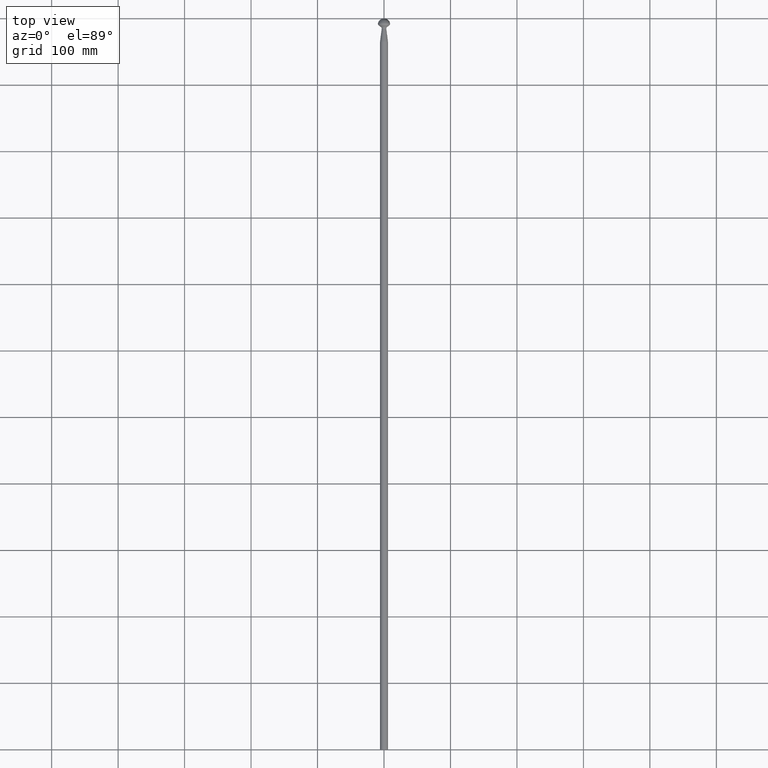
[diagram: clean part render]
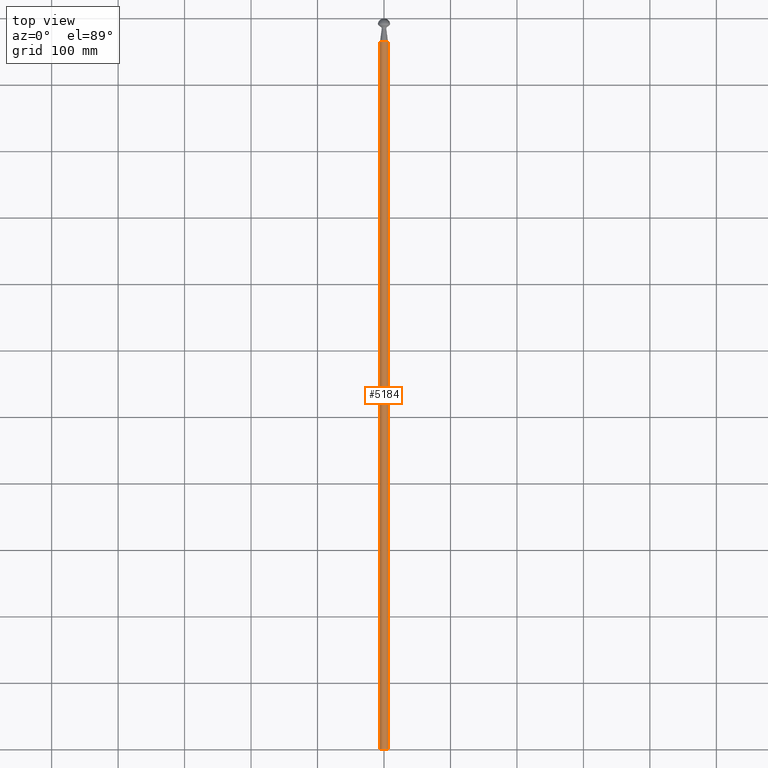
[diagram: same view with one face highlighted and labeled with its STEP entity id]
A machine part, top view. The second image highlights one B-rep face of the part: STEP entity #5184.
In plain terms, the highlighted cylindrical surface (bore or boss wall) has radius 6 mm, axis along (-0, -1, -0).
Its self-contained STEP definition (entity closure, byte-faithful):
#45 = EDGE_LOOP ( 'NONE', ( #10824 ) ) ;
#497 = DIRECTION ( 'NONE',  ( -0.000000000000000000, -1.000000000000000000, -0.000000000000000000 ) ) ;
#1276 = CARTESIAN_POINT ( 'NONE',  ( 0.000000000000000000, 1064.334305752207229, -6.000000000000000888 ) ) ;
#1285 = DIRECTION ( 'NONE',  ( 0.000000000000000000, 0.000000000000000000, 1.000000000000000000 ) ) ;
#1529 = EDGE_CURVE ( 'NONE', #4777, #4777, #11012, .T. ) ;
#2207 = VERTEX_POINT ( 'NONE', #1276 ) ;
#2315 = ORIENTED_EDGE ( 'NONE', *, *, #9113, .T. ) ;
#2689 = CARTESIAN_POINT ( 'NONE',  ( 0.000000000000000000, 0.000000000000000000, 6.000000000000000888 ) ) ;
#3807 = CARTESIAN_POINT ( 'NONE',  ( 0.000000000000000000, 1065.000000000000000, 0.000000000000000000 ) ) ;
#3843 = AXIS2_PLACEMENT_3D ( 'NONE', #3807, #497, #4797 ) ;
#4013 = FACE_OUTER_BOUND ( 'NONE', #9030, .T. ) ;
#4359 = AXIS2_PLACEMENT_3D ( 'NONE', #7086, #7953, #9818 ) ;
#4756 = DIRECTION ( 'NONE',  ( 0.000000000000000000, 1.000000000000000000, 0.000000000000000000 ) ) ;
#4777 = VERTEX_POINT ( 'NONE', #2689 ) ;
#4797 = DIRECTION ( 'NONE',  ( 0.000000000000000000, 0.000000000000000000, -1.000000000000000000 ) ) ;
#5184 = ADVANCED_FACE ( 'NONE', ( #4013, #5775 ), #6466, .T. ) ;
#5775 = FACE_OUTER_BOUND ( 'NONE', #45, .T. ) ;
#5991 = CIRCLE ( 'NONE', #4359, 6.000000000000000888 ) ;
#6142 = AXIS2_PLACEMENT_3D ( 'NONE', #8330, #4756, #1285 ) ;
#6466 = CYLINDRICAL_SURFACE ( 'NONE', #3843, 6.000000000000000888 ) ;
#7086 = CARTESIAN_POINT ( 'NONE',  ( 0.000000000000000000, 1064.334305752207229, 0.000000000000000000 ) ) ;
#7953 = DIRECTION ( 'NONE',  ( -0.000000000000000000, -1.000000000000000000, -0.000000000000000000 ) ) ;
#8330 = CARTESIAN_POINT ( 'NONE',  ( 0.000000000000000000, 0.000000000000000000, 0.000000000000000000 ) ) ;
#9030 = EDGE_LOOP ( 'NONE', ( #2315 ) ) ;
#9113 = EDGE_CURVE ( 'NONE', #2207, #2207, #5991, .T. ) ;
#9818 = DIRECTION ( 'NONE',  ( 0.000000000000000000, 0.000000000000000000, -1.000000000000000000 ) ) ;
#10824 = ORIENTED_EDGE ( 'NONE', *, *, #1529, .T. ) ;
#11012 = CIRCLE ( 'NONE', #6142, 6.000000000000000888 ) ;